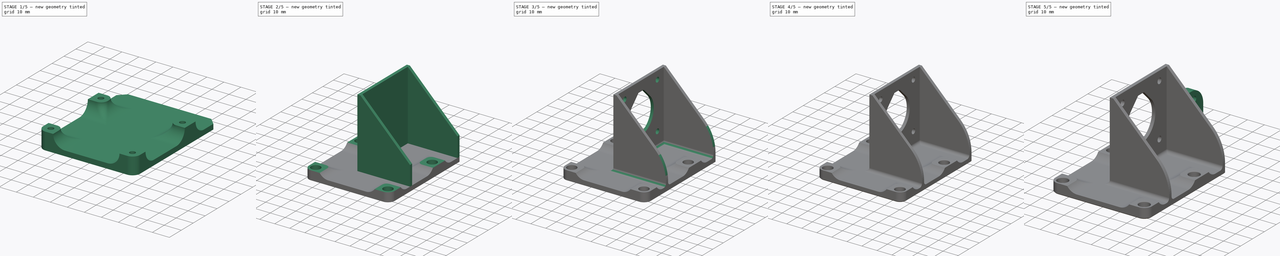
[diagram: build sequence overview — one tinted view per stage of 5, left to right]
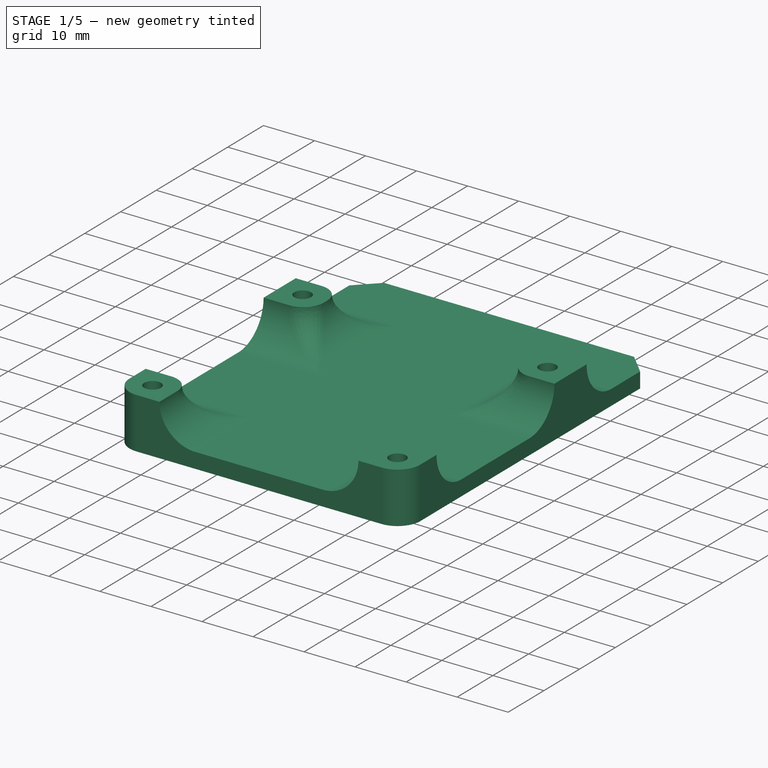
[diagram: stage 1 of 5 — iso view after this stage's code; geometry added in this stage tinted green]
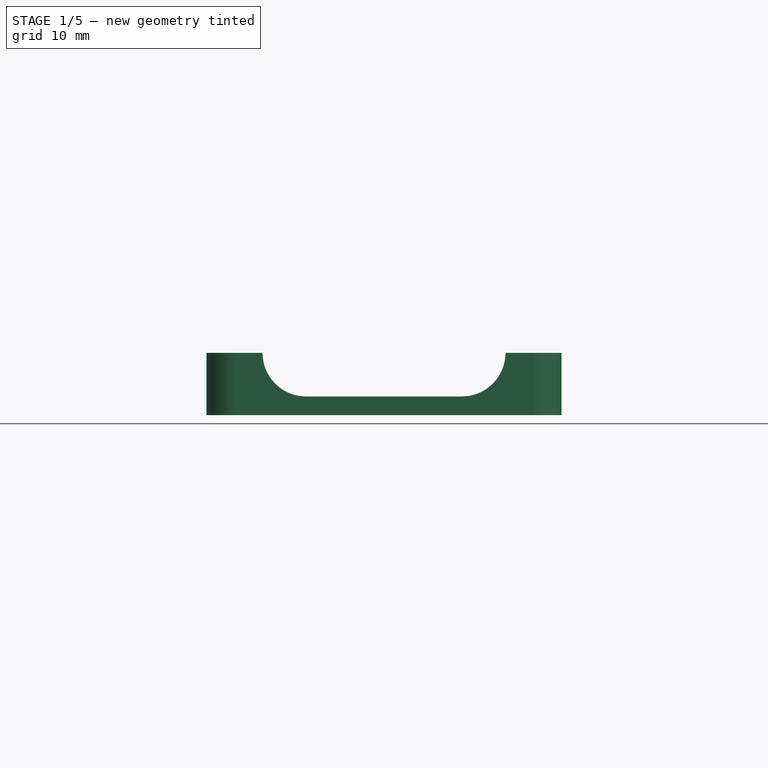
[diagram: stage 1 of 5 — front view after this stage's code; geometry added in this stage tinted green]
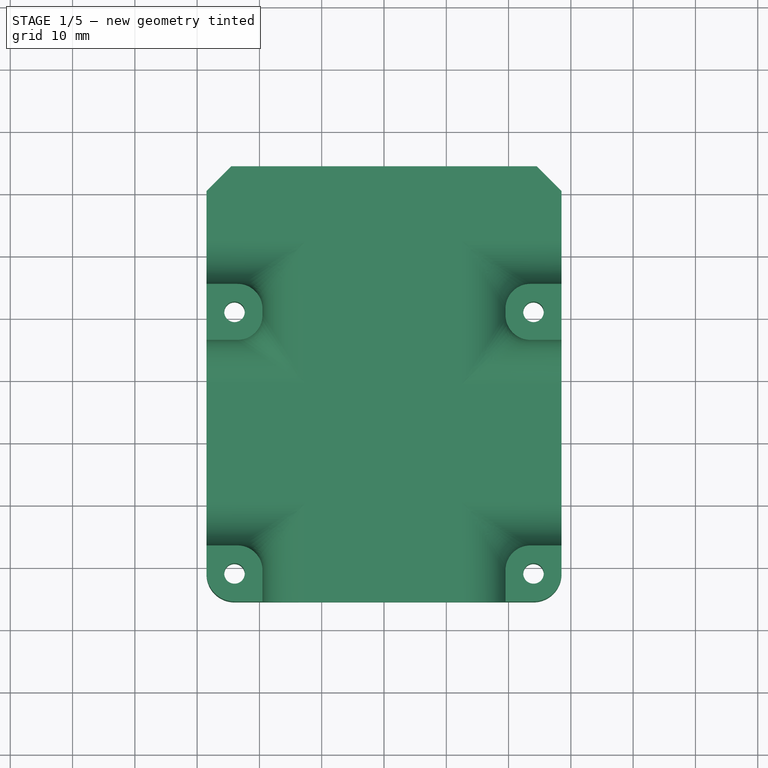
[diagram: stage 1 of 5 — top view after this stage's code; geometry added in this stage tinted green]
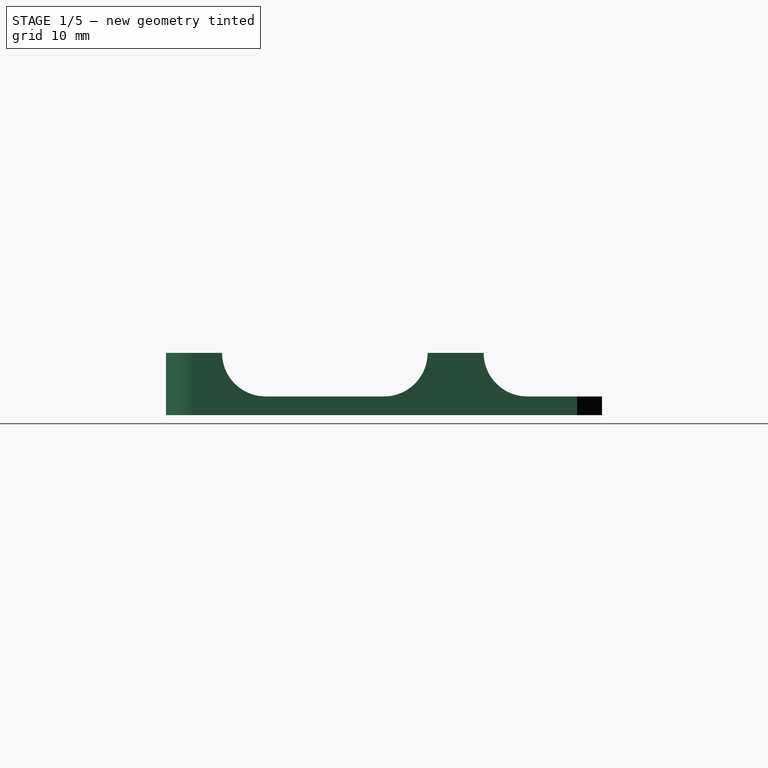
[diagram: stage 1 of 5 — right view after this stage's code; geometry added in this stage tinted green]
FCSTD DOCUMENT  (FreeCAD 0.16R6707 (Git))
Label: E3dSoporte
License: CreativeCommons Attribution-NonCommercial-ShareAlike
LicenseURL: http://creativecommons.org/licenses/by-nc-sa/4.0/
objects: Sketcher::SketchObject×9, PartDesign::Fillet×7, PartDesign::Pocket×6, PartDesign::Pad×3, PartDesign::Chamfer×3
note: 37 computed .brp shape members not serialized (recipe doc carries the construction recipe); baked Part::Feature solids carry a one-line shape summary decoded from their .brp

FEATURE [Sketcher::SketchObject] Sketch
  sketch-geometry (16):
    g0: LineSegment [constr] StartX=-24 StartY=21 StartZ=0 EndX=24 EndY=21 EndZ=0
    g1: LineSegment [constr] StartX=24 StartY=21 StartZ=0 EndX=24 EndY=-21 EndZ=0
    g2: LineSegment [constr] StartX=24 StartY=-21 StartZ=0 EndX=-24 EndY=-21 EndZ=0
    g3: LineSegment [constr] StartX=-24 StartY=-21 StartZ=0 EndX=-24 EndY=21 EndZ=0
    g4: Circle CenterX=-24 CenterY=21 CenterZ=0 NormalX=0 NormalY=0 NormalZ=1 Radius=1.65
    g5: Circle CenterX=24 CenterY=21 CenterZ=0 NormalX=0 NormalY=0 NormalZ=1 Radius=1.65
    g6: Circle CenterX=-24 CenterY=-21 CenterZ=0 NormalX=0 NormalY=0 NormalZ=1 Radius=1.65
    g7: Circle CenterX=24 CenterY=-21 CenterZ=0 NormalX=0 NormalY=0 NormalZ=1 Radius=1.65
    g8: ArcOfCircle CenterX=-24 CenterY=-21 CenterZ=0 NormalX=0 NormalY=0 NormalZ=1 Radius=4.5 StartAngle=3.14159 EndAngle=4.71239
    g9: ArcOfCircle CenterX=24 CenterY=-21 CenterZ=0 NormalX=0 NormalY=0 NormalZ=1 Radius=4.5 StartAngle=4.71239 EndAngle=6.28319
    g10: LineSegment StartX=-24 StartY=-25.5 StartZ=0 EndX=24 EndY=-25.5 EndZ=0
    g11: LineSegment StartX=-28.5 StartY=-21 StartZ=0 EndX=-28.5 EndY=40.5 EndZ=0
    g12: LineSegment StartX=28.5 StartY=-21 StartZ=0 EndX=28.5 EndY=40.5 EndZ=0
    g13: LineSegment StartX=-28.5 StartY=40.5 StartZ=0 EndX=-24.5 EndY=44.5 EndZ=0
    g14: LineSegment StartX=-24.5 StartY=44.5 StartZ=0 EndX=24.5 EndY=44.5 EndZ=0
    g15: LineSegment StartX=24.5 StartY=44.5 StartZ=0 EndX=28.5 EndY=40.5 EndZ=0
  constraints (43):
    c: Coincident(g0,g1)
    c: Coincident(g1,g2)
    c: Coincident(g2,g3)
    c: Coincident(g3,g0)
    c: Horizontal(g0)
    c: Horizontal(g2)
    c: Vertical(g1)
    c: Vertical(g3)
    c: Symmetric(g1,g0,g-1)
    c: Coincident(g4,g0)
    c: Coincident(g5,g0)
    c: Coincident(g6,g2)
    c: Coincident(g7,g1)
    c: Equal(g4,g5)
    c: Equal(g5,g7)
    c: Equal(g7,g6)
    c: Radius(g5) = 1.65
    c: DistanceX(g0,g0) = 48
    c: DistanceY(g3,g3) = 42
    c: Coincident(g8,g2)
    c: Coincident(g9,g1)
    c: Coincident(g10,g8)
    c: Coincident(g10,g9)
    c: Horizontal(g10)
    c: Tangent(g10,g9)
    c: Tangent(g10,g8)
    c: Coincident(g11,g8)
    c: Vertical(g11)
    c: Coincident(g12,g9)
    c: Vertical(g12)
    c: Tangent(g12,g9)
    c: Tangent(g8,g11)
    c: DistanceX(g8,g9) = 57
    c: Coincident(g11,g13)
    c: Coincident(g13,g14)
    c: Horizontal(g14)
    c: Coincident(g14,g15)
    c: Coincident(g15,g12)
    c: Symmetric(g13,g14,g-2)
    c: Symmetric(g11,g12,g-2)
    c: Perpendicular(g15,g13)
    c: DistanceY(g8,g13) = 70
    c: DistanceY(g11,g13) = 4
FEATURE [PartDesign::Pad] Pad
  Length = 10
  Length2 = 100
  Sketch = -> Sketch
  Type = 0
FEATURE [Sketcher::SketchObject] Sketch001
  ExternalGeometry = -> [Pad]
  Placement = pos=(0,-25.5,0) rot=(1,0,0;1.5708rad)
  Support = -> Pad [Face2]
  sketch-geometry (4):
    g0: ArcOfCircle CenterX=-12.5 CenterY=10 CenterZ=0 NormalX=0 NormalY=0 NormalZ=1 Radius=7 StartAngle=1.5708 EndAngle=4.71239
    g1: ArcOfCircle CenterX=12.5 CenterY=10 CenterZ=0 NormalX=0 NormalY=0 NormalZ=1 Radius=7 StartAngle=4.71239 EndAngle=7.85398
    g2: LineSegment StartX=-12.5 StartY=3 StartZ=0 EndX=12.5 EndY=3 EndZ=0
    g3: LineSegment StartX=-12.5 StartY=17 StartZ=0 EndX=12.5 EndY=17 EndZ=0
  constraints (10):
    c: Tangent(g0,g3) = 1.5708
    c: Tangent(g0,g2) = -1.5708
    c: Tangent(g2,g1) = -1.5708
    c: Tangent(g3,g1) = 1.5708
    c: Horizontal(g2)
    c: Equal(g0,g1)
    c: Symmetric(g0,g1,g-2)
    c: PointOnObject(g1,g-3)
    c: DistanceY(g-1,g1) = 3
    c: DistanceX(g3,g3) = 25
FEATURE [PartDesign::Pocket] Pocket
  Length = 5
  Sketch = -> Sketch001
  Type = 1
FEATURE [Sketcher::SketchObject] Sketch002
  ExternalGeometry = -> [Pocket]
  Placement = pos=(28.5,0,0) rot=(0.57735,0.57735,0.57735;2.0944rad)
  Support = -> Pocket [Face12]
  sketch-geometry (9):
    g0: ArcOfCircle CenterX=-9.5 CenterY=10 CenterZ=0 NormalX=0 NormalY=0 NormalZ=1 Radius=7 StartAngle=1.5708 EndAngle=4.71239
    g1: ArcOfCircle CenterX=9.5 CenterY=10 CenterZ=0 NormalX=0 NormalY=0 NormalZ=1 Radius=7 StartAngle=4.71239 EndAngle=7.85398
    g2: LineSegment StartX=-9.5 StartY=3 StartZ=0 EndX=9.5 EndY=3 EndZ=0
    g3: LineSegment StartX=-9.5 StartY=17 StartZ=0 EndX=9.5 EndY=17 EndZ=0
    g4: ArcOfCircle CenterX=32.5 CenterY=10 CenterZ=0 NormalX=0 NormalY=0 NormalZ=1 Radius=7 StartAngle=1.5708 EndAngle=4.71239
    g5: ArcOfCircle CenterX=51.5 CenterY=10 CenterZ=0 NormalX=0 NormalY=0 NormalZ=1 Radius=7 StartAngle=4.71239 EndAngle=7.85398
    g6: LineSegment StartX=32.5 StartY=3 StartZ=0 EndX=51.5 EndY=3 EndZ=0
    g7: LineSegment StartX=32.5 StartY=17 StartZ=0 EndX=51.5 EndY=17 EndZ=0
    g8: LineSegment [constr] StartX=21 StartY=10 StartZ=0 EndX=21 EndY=0 EndZ=0
  constraints (24):
    c: Tangent(g0,g3) = 1.5708
    c: Tangent(g0,g2) = -1.5708
    c: Tangent(g2,g1) = -1.5708
    c: Tangent(g3,g1) = 1.5708
    c: Horizontal(g2)
    c: Equal(g0,g1)
    c: PointOnObject(g0,g-3)
    c: Tangent(g4,g7) = 1.5708
    c: Tangent(g4,g6) = -1.5708
    c: Tangent(g6,g5) = -1.5708
    c: Tangent(g7,g5) = 1.5708
    c: Horizontal(g6)
    c: Equal(g4,g5)
    c: PointOnObject(g4,g-3)
    c: DistanceY(g-1,g1) = 3
    c: Equal(g1,g4)
    c: Symmetric(g0,g1,g-2)
    c: DistanceX(g3,g3) = 19
    c: Equal(g7,g3)
    c: PointOnObject(g8,g-3)
    c: PointOnObject(g8,g-1)
    c: Vertical(g8)
    c: DistanceX(g-1,g8) = 21
    c: Symmetric(g1,g4,g8)
FEATURE [PartDesign::Pocket] Pocket001
  Length = 5
  Sketch = -> Sketch002
  Type = 1
FEATURE [PartDesign::Fillet] Fillet
  Base = -> Pocket001 [Edge41,Edge36,Edge43,Edge51,Edge72,Edge76]
  Radius = 4
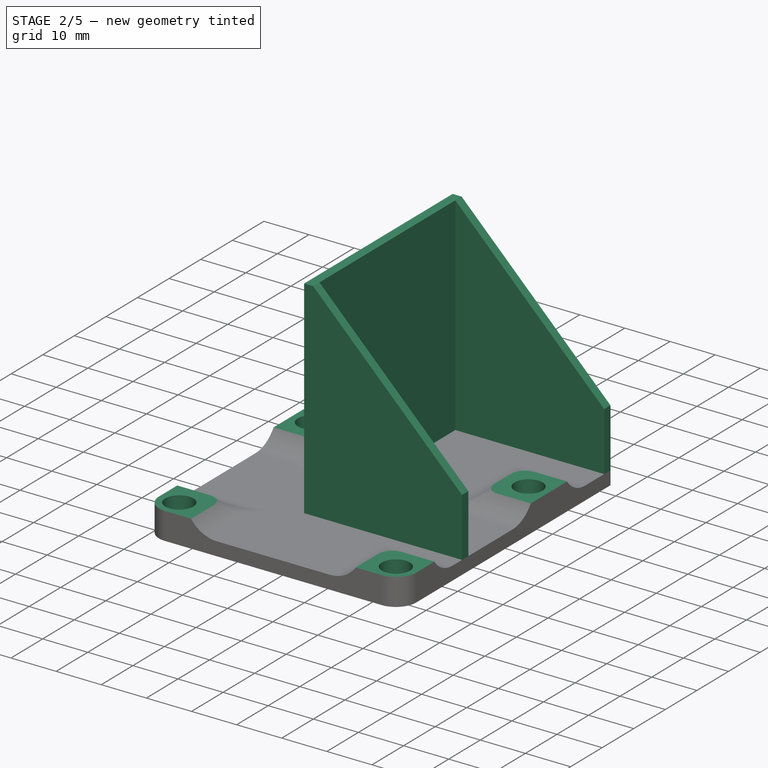
[diagram: stage 2 of 5 — iso view after this stage's code; geometry added in this stage tinted green]
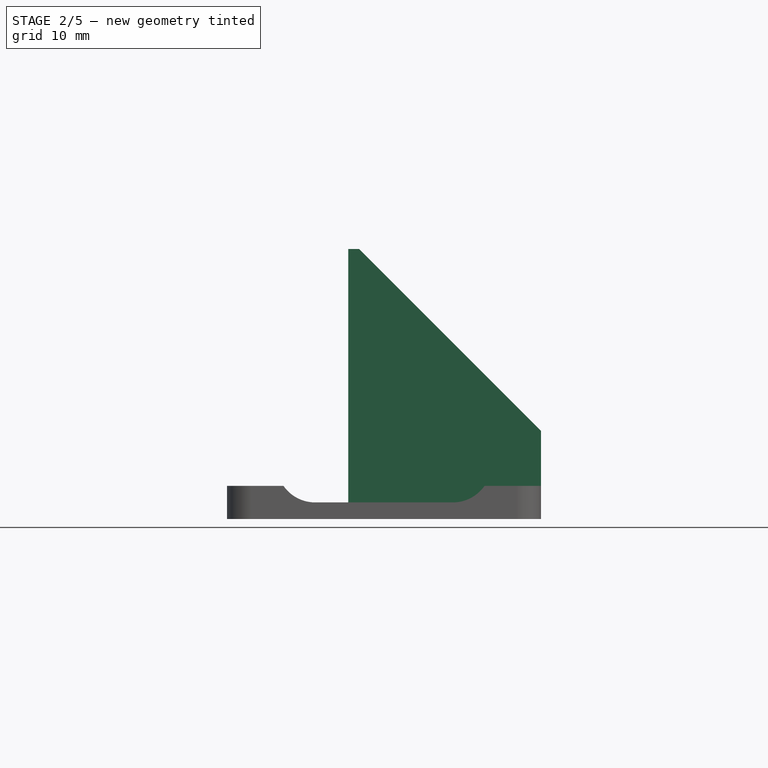
[diagram: stage 2 of 5 — front view after this stage's code; geometry added in this stage tinted green]
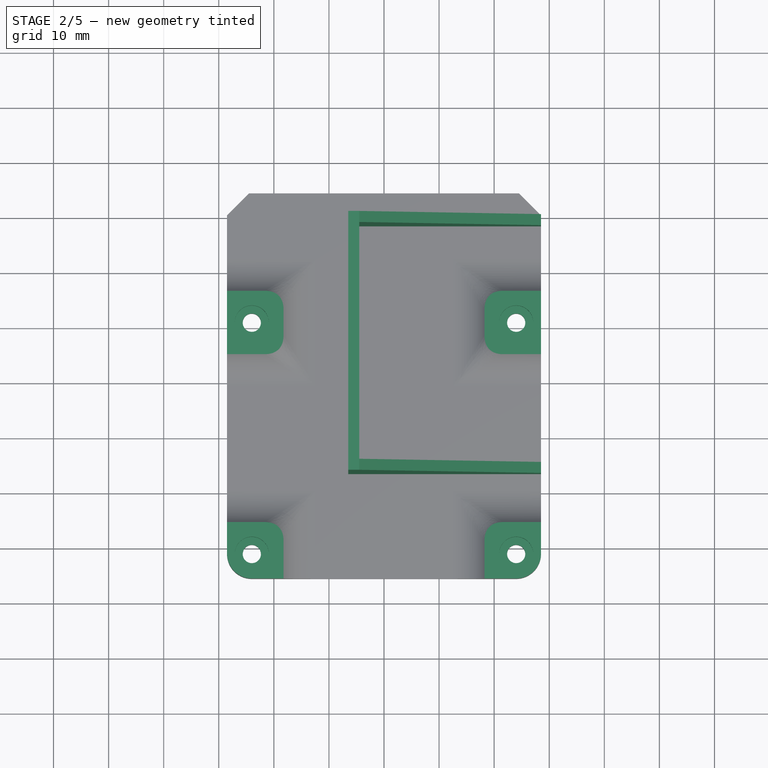
[diagram: stage 2 of 5 — top view after this stage's code; geometry added in this stage tinted green]
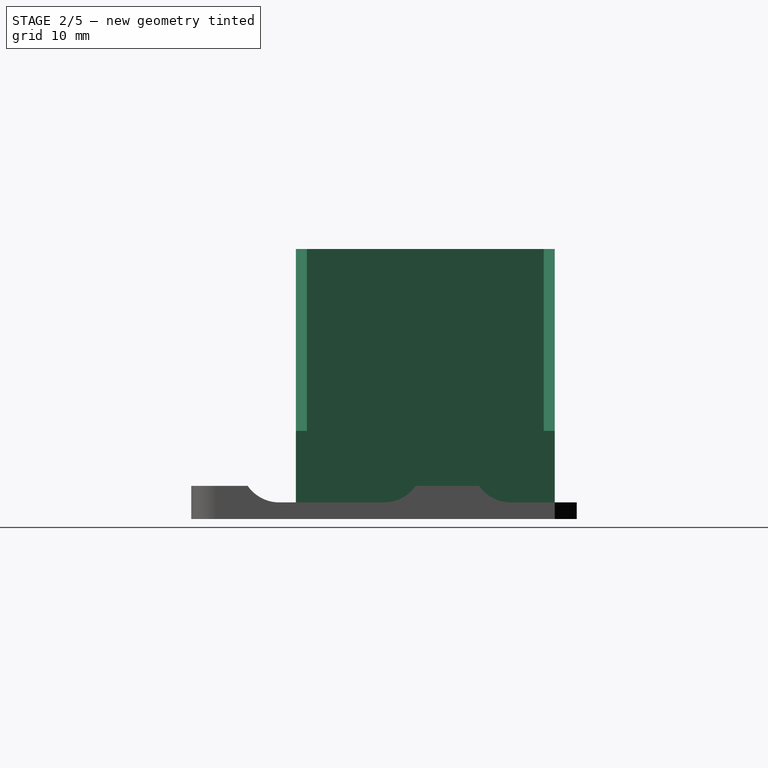
[diagram: stage 2 of 5 — right view after this stage's code; geometry added in this stage tinted green]
FEATURE [Sketcher::SketchObject] Sketch003
  ExternalGeometry = -> [Fillet]
  Placement = pos=(0,0,10) rot=(0,0,1;0rad)
  Support = -> Fillet [Face1]
  sketch-geometry (4):
    g0: Circle CenterX=-24 CenterY=21 CenterZ=0 NormalX=0 NormalY=0 NormalZ=1 Radius=3.1
    g1: Circle CenterX=24 CenterY=21 CenterZ=0 NormalX=0 NormalY=0 NormalZ=1 Radius=3.1
    g2: Circle CenterX=-24 CenterY=-21 CenterZ=0 NormalX=0 NormalY=0 NormalZ=1 Radius=3.1
    g3: Circle CenterX=24 CenterY=-21 CenterZ=0 NormalX=0 NormalY=0 NormalZ=1 Radius=3.1
  constraints (8):
    c: Coincident(g0,g-3)
    c: Coincident(g1,g-4)
    c: Coincident(g2,g-6)
    c: Coincident(g3,g-5)
    c: Equal(g3,g2)
    c: Equal(g2,g0)
    c: Equal(g0,g1)
    c: Radius(g0) = 3.1
FEATURE [PartDesign::Pocket] Pocket002
  Length = 7
  Sketch = -> Sketch003
  Type = 0
FEATURE [Sketcher::SketchObject] Sketch004
  Placement = pos=(28.5,0,0) rot=(0.57735,0.57735,0.57735;2.0944rad)
  Support = -> Pocket002 [Face22]
  sketch-geometry (4):
    g0: LineSegment StartX=-30 StartY=16 StartZ=0 EndX=30 EndY=16 EndZ=0
    g1: LineSegment StartX=30 StartY=16 StartZ=0 EndX=30 EndY=6 EndZ=0
    g2: LineSegment StartX=30 StartY=6 StartZ=0 EndX=-30 EndY=6 EndZ=0
    g3: LineSegment StartX=-30 StartY=6 StartZ=0 EndX=-30 EndY=16 EndZ=0
  constraints (12):
    c: Coincident(g0,g1)
    c: Coincident(g1,g2)
    c: Coincident(g2,g3)
    c: Coincident(g3,g0)
    c: Horizontal(g0)
    c: Horizontal(g2)
    c: Vertical(g1)
    c: Vertical(g3)
    c: Symmetric(g2,g1,g-2)
    c: DistanceX(g0,g0) = 60
    c: DistanceY(g3,g3) = 10
    c: DistanceY(g-1,g2) = 6
FEATURE [PartDesign::Pocket] Pocket003
  Length = 5
  Sketch = -> Sketch004
  Type = 1
FEATURE [Sketcher::SketchObject] Sketch005
  ExternalGeometry = -> [Pocket003]
  Placement = pos=(0,0,3) rot=(0,0,1;0rad)
  Support = -> Pocket003 [Face4]
  sketch-geometry (9):
    g0: LineSegment StartX=28.5 StartY=-6.5 StartZ=0 EndX=-6.5 EndY=-6.5 EndZ=0
    g1: LineSegment StartX=-6.5 StartY=-6.5 StartZ=0 EndX=-6.5 EndY=40.5 EndZ=0
    g2: LineSegment StartX=-6.5 StartY=40.5 StartZ=0 EndX=28.5 EndY=40.5 EndZ=0
    g3: LineSegment StartX=28.5 StartY=40.5 StartZ=0 EndX=28.5 EndY=38.5 EndZ=0
    g4: LineSegment StartX=28.5 StartY=38.5 StartZ=0 EndX=-4.5 EndY=38.5 EndZ=0
    g5: LineSegment StartX=-4.5 StartY=38.5 StartZ=0 EndX=-4.5 EndY=-4.5 EndZ=0
    g6: LineSegment StartX=-4.5 StartY=-4.5 StartZ=0 EndX=28.5 EndY=-4.5 EndZ=0
    g7: LineSegment StartX=28.5 StartY=-4.5 StartZ=0 EndX=28.5 EndY=-6.5 EndZ=0
    g8: LineSegment [constr] StartX=-4.5 StartY=-4.5 StartZ=0 EndX=-6.5 EndY=-4.5 EndZ=0
  constraints (27):
    c: Horizontal(g0)
    c: Coincident(g0,g1)
    c: Vertical(g1)
    c: Coincident(g1,g2)
    c: Horizontal(g2)
    c: Coincident(g2,g3)
    c: Vertical(g3)
    c: Coincident(g3,g4)
    c: Horizontal(g4)
    c: Coincident(g4,g5)
    c: Vertical(g5)
    c: Coincident(g5,g6)
    c: Horizontal(g6)
    c: Coincident(g6,g7)
    c: Coincident(g7,g0)
    c: Vertical(g7)
    c: Coincident(g8,g5)
    c: PointOnObject(g8,g1)
    c: Horizontal(g8)
    c: Equal(g8,g7)
    c: Equal(g7,g3)
    c: DistanceY(g3,g3) = 2
    c: DistanceY(g5,g5) = 43
    c: PointOnObject(g6,g-4)
    c: PointOnObject(g3,g-4)
    c: DistanceX(g-3,g0) = 22
    c: Coincident(g2,g-5)
FEATURE [PartDesign::Pad] Pad001
  Length = 46
  Length2 = 100
  Sketch = -> Sketch005
  Type = 0
FEATURE [PartDesign::Chamfer] Chamfer
  Base = -> Pad001 [Edge121,Edge118]
  Size = 33
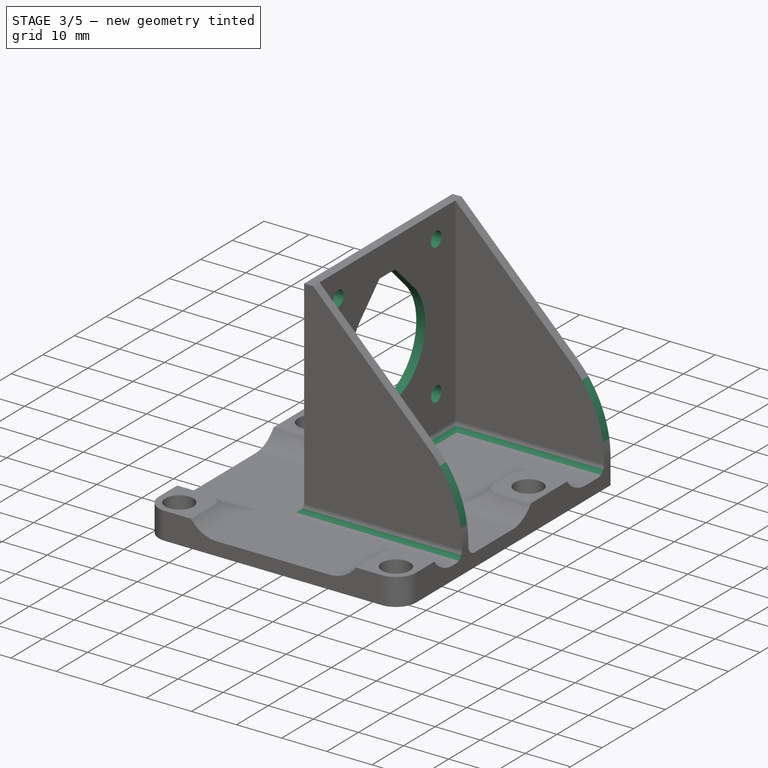
[diagram: stage 3 of 5 — iso view after this stage's code; geometry added in this stage tinted green]
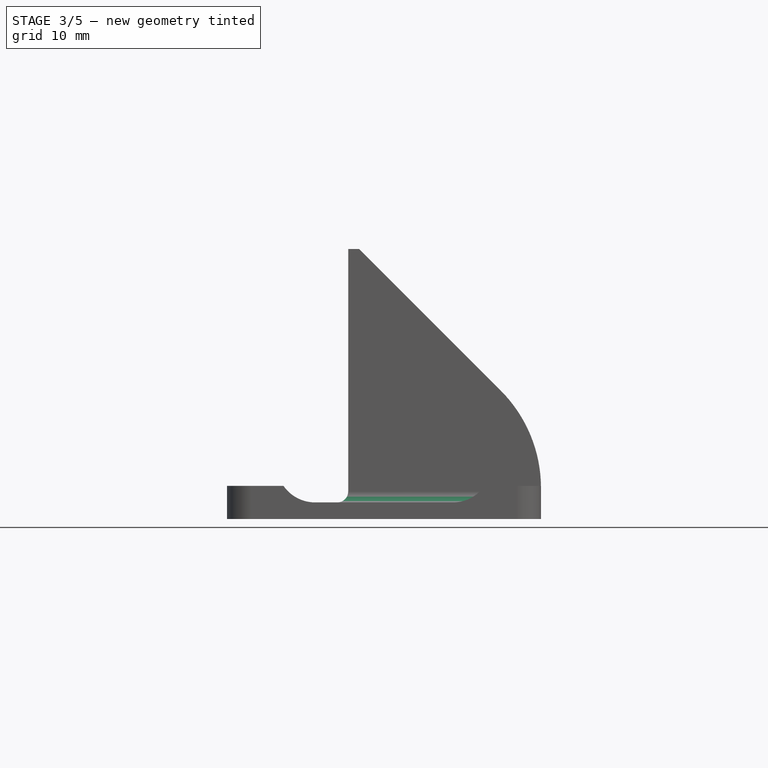
[diagram: stage 3 of 5 — front view after this stage's code; geometry added in this stage tinted green]
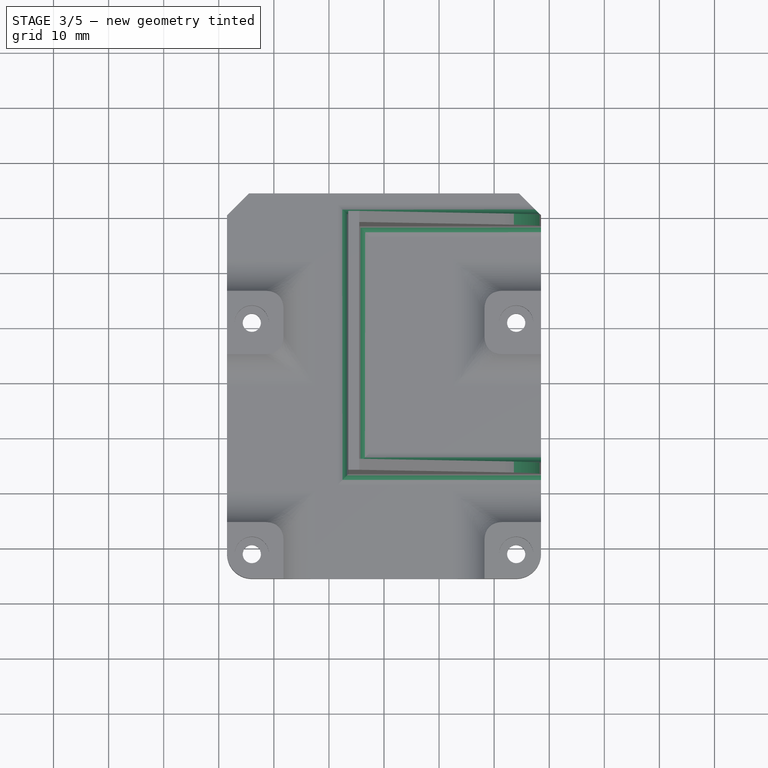
[diagram: stage 3 of 5 — top view after this stage's code; geometry added in this stage tinted green]
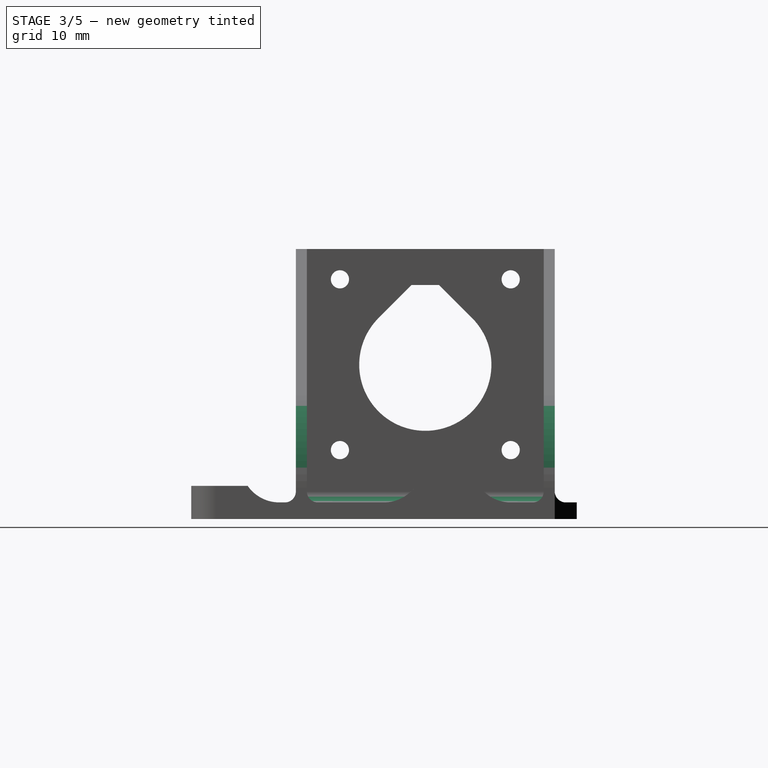
[diagram: stage 3 of 5 — right view after this stage's code; geometry added in this stage tinted green]
FEATURE [PartDesign::Fillet] Fillet001
  Base = -> Chamfer [Edge74,Edge3,Edge32,Edge23,Edge24,Edge75]
  Radius = 2
FEATURE [Sketcher::SketchObject] Sketch006
  ExternalGeometry = -> [Fillet001]
  Placement = pos=(-6.5,0,0) rot=(0.57735,-0.57735,-0.57735;2.0944rad)
  Support = -> Fillet001 [Face24]
  sketch-geometry (15):
    g0: LineSegment [constr] StartX=-40.5 StartY=49 StartZ=0 EndX=-17 EndY=28 EndZ=0
    g1: LineSegment [constr] StartX=-17 StartY=28 StartZ=0 EndX=6.5 EndY=49 EndZ=0
    g2: ArcOfCircle CenterX=-17 CenterY=28 CenterZ=0 NormalX=0 NormalY=0 NormalZ=1 Radius=12 StartAngle=2.35619 EndAngle=7.06858
    g3: LineSegment StartX=-25.4853 StartY=36.4853 StartZ=0 EndX=-19.5 EndY=42.4706 EndZ=0
    g4: LineSegment StartX=-19.5 StartY=42.4706 StartZ=0 EndX=-14.5 EndY=42.4706 EndZ=0
    g5: LineSegment StartX=-14.5 StartY=42.4706 StartZ=0 EndX=-8.51472 EndY=36.4853 EndZ=0
    g6: LineSegment [constr] StartX=-17 StartY=28 StartZ=0 EndX=-17 EndY=42.4706 EndZ=0
    g7: LineSegment [constr] StartX=-32.5 StartY=43.5 StartZ=0 EndX=-1.5 EndY=43.5 EndZ=0
    g8: LineSegment [constr] StartX=-1.5 StartY=43.5 StartZ=0 EndX=-1.5 EndY=12.5 EndZ=0
    g9: LineSegment [constr] StartX=-1.5 StartY=12.5 StartZ=0 EndX=-32.5 EndY=12.5 EndZ=0
    g10: LineSegment [constr] StartX=-32.5 StartY=12.5 StartZ=0 EndX=-32.5 EndY=43.5 EndZ=0
    g11: Circle CenterX=-32.5 CenterY=43.5 CenterZ=0 NormalX=0 NormalY=0 NormalZ=1 Radius=1.65
    g12: Circle CenterX=-1.5 CenterY=43.5 CenterZ=0 NormalX=0 NormalY=0 NormalZ=1 Radius=1.65
    g13: Circle CenterX=-32.5 CenterY=12.5 CenterZ=0 NormalX=0 NormalY=0 NormalZ=1 Radius=1.65
    g14: Circle CenterX=-1.5 CenterY=12.5 CenterZ=0 NormalX=0 NormalY=0 NormalZ=1 Radius=1.65
  constraints (38):
    c: Coincident(g0,g-3)
    c: Coincident(g1,g0)
    c: Coincident(g1,g-3)
    c: Equal(g0,g1)
    c: DistanceY(g0,g0) = 21
    c: Coincident(g2,g0)
    c: Tangent(g2,g3) = 1.5708
    c: Coincident(g3,g4)
    c: Horizontal(g4)
    c: Coincident(g4,g5)
    c: Coincident(g5,g2)
    c: Tangent(g2,g5)
    c: Coincident(g6,g0)
    c: PointOnObject(g6,g4)
    c: Vertical(g6)
    c: Symmetric(g2,g2,g6)
    c: Perpendicular(g5,g3)
    c: Radius(g2) = 12
    c: DistanceX(g4,g4) = 5
    c: Coincident(g7,g8)
    c: Coincident(g8,g9)
    c: Coincident(g9,g10)
    c: Coincident(g10,g7)
    c: Horizontal(g7)
    c: Horizontal(g9)
    c: Vertical(g8)
    c: Vertical(g10)
    c: Equal(g10,g7)
    c: Symmetric(g7,g8,g0)
    c: DistanceY(g10,g10) = 31
    c: Coincident(g11,g7)
    c: Coincident(g12,g7)
    c: Coincident(g13,g9)
    c: Coincident(g14,g8)
    c: Equal(g14,g13)
    c: Equal(g13,g11)
    c: Equal(g11,g12)
    c: Radius(g14) = 1.65
FEATURE [PartDesign::Pocket] Pocket004
  Length = 5
  Sketch = -> Sketch006
  Type = 0
FEATURE [PartDesign::Fillet] Fillet002
  Base = -> Pocket004 [Edge23,Edge7]
  Radius = 25
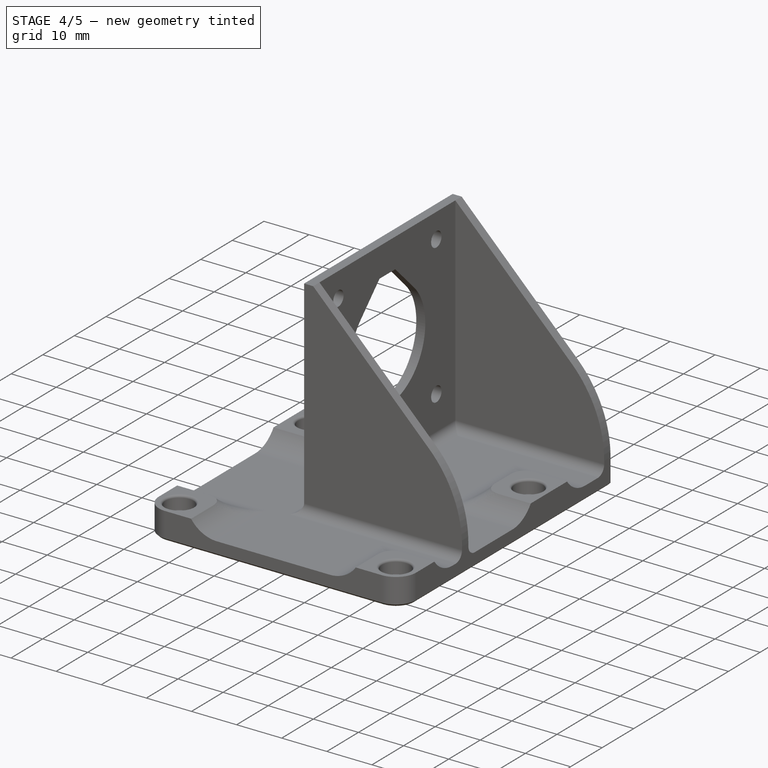
[diagram: stage 4 of 5 — iso view after this stage's code; geometry added in this stage tinted green]
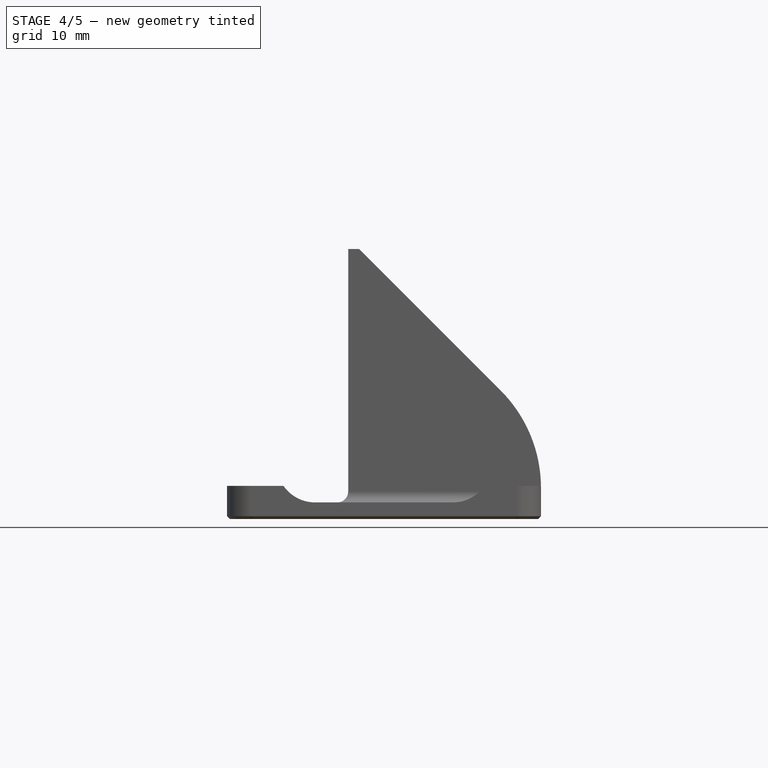
[diagram: stage 4 of 5 — front view after this stage's code; geometry added in this stage tinted green]
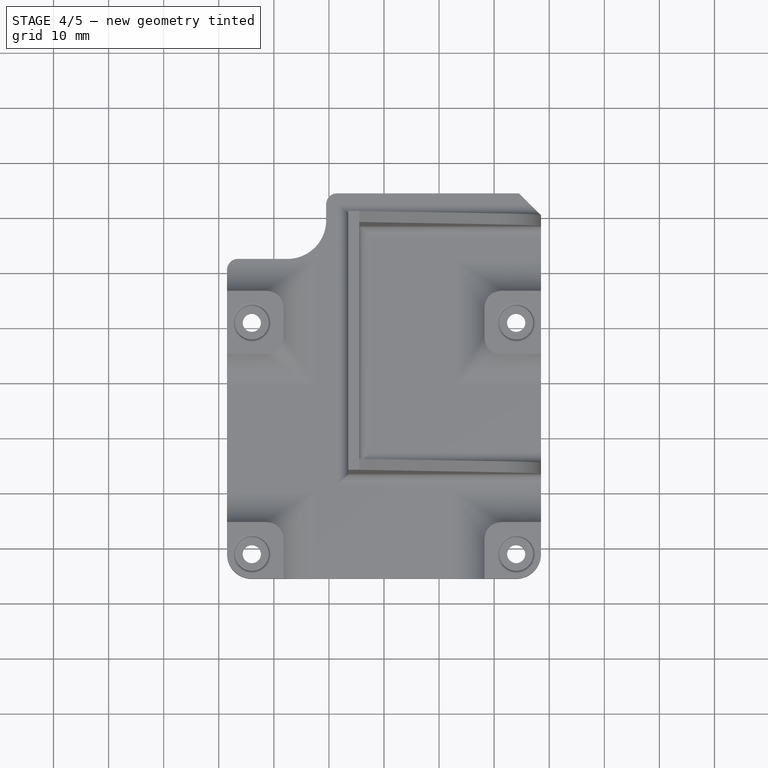
[diagram: stage 4 of 5 — top view after this stage's code; geometry added in this stage tinted green]
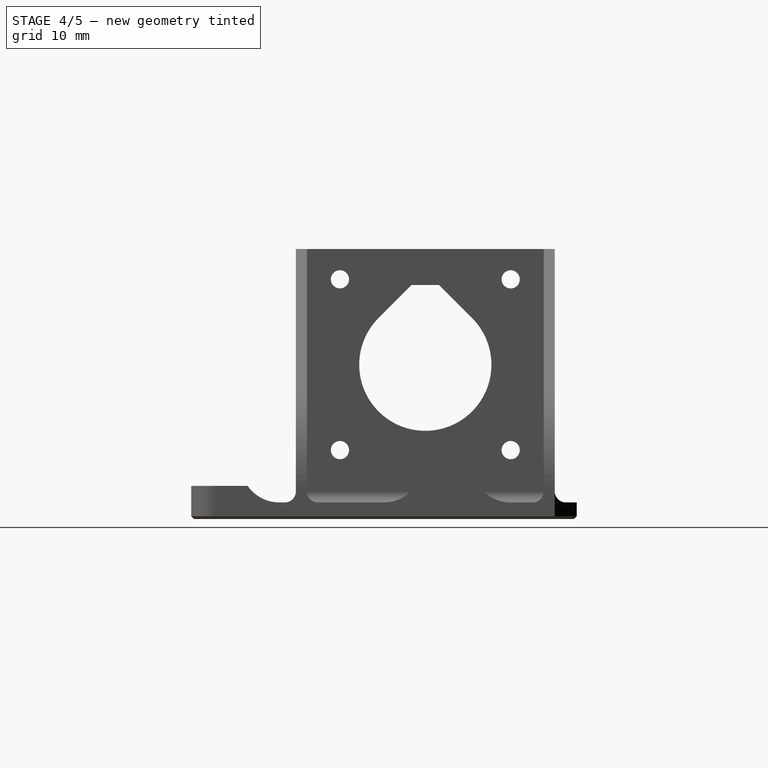
[diagram: stage 4 of 5 — right view after this stage's code; geometry added in this stage tinted green]
FEATURE [PartDesign::Fillet] Fillet003
  Base = -> Fillet002 [Edge173,Edge78,Edge73,Edge170]
  Radius = 0.5
FEATURE [PartDesign::Chamfer] Chamfer001
  Base = -> Fillet003 [Edge61,Edge32,Edge30,Edge16,Edge55,Edge62,Edge63,Edge64,Edge65,Edge66,Edge67,Edge68]
  Size = 0.5
FEATURE [Sketcher::SketchObject] Sketch007
  ExternalGeometry = -> [Chamfer001]
  Placement = pos=(0,0,3) rot=(0,0,1;0rad)
  Support = -> Chamfer001 [Face10]
  sketch-geometry (5):
    g0: ArcOfCircle CenterX=-17.5 CenterY=39.6 CenterZ=0 NormalX=0 NormalY=0 NormalZ=1 Radius=7 StartAngle=4.71239 EndAngle=6.28319
    g1: LineSegment StartX=-17.5 StartY=32.6 StartZ=0 EndX=-29.5 EndY=32.6 EndZ=0
    g2: LineSegment StartX=-29.5 StartY=32.6 StartZ=0 EndX=-29.5 EndY=45.5 EndZ=0
    g3: LineSegment StartX=-29.5 StartY=45.5 StartZ=0 EndX=-10.5 EndY=45.5 EndZ=0
    g4: LineSegment StartX=-10.5 StartY=45.5 StartZ=0 EndX=-10.5 EndY=39.6 EndZ=0
  constraints (15):
    c: Tangent(g0,g1) = 1.5708
    c: Coincident(g1,g2)
    c: Vertical(g2)
    c: Coincident(g2,g3)
    c: Horizontal(g3)
    c: Coincident(g3,g4)
    c: Coincident(g4,g0)
    c: Vertical(g4)
    c: Tangent(g0,g4)
    c: Horizontal(g1)
    c: DistanceY(g-3,g2) = 5
    c: DistanceX(g2,g-3) = 5
    c: Radius(g0) = 7
    c: DistanceX(g0,g-4) = 2
    c: DistanceY(g-5,g0) = 0.1
FEATURE [PartDesign::Pocket] Pocket005
  Length = 5
  Sketch = -> Sketch007
  Type = 0
FEATURE [PartDesign::Fillet] Fillet004
  Base = -> Pocket005 [Edge92,Edge144]
  Radius = 2
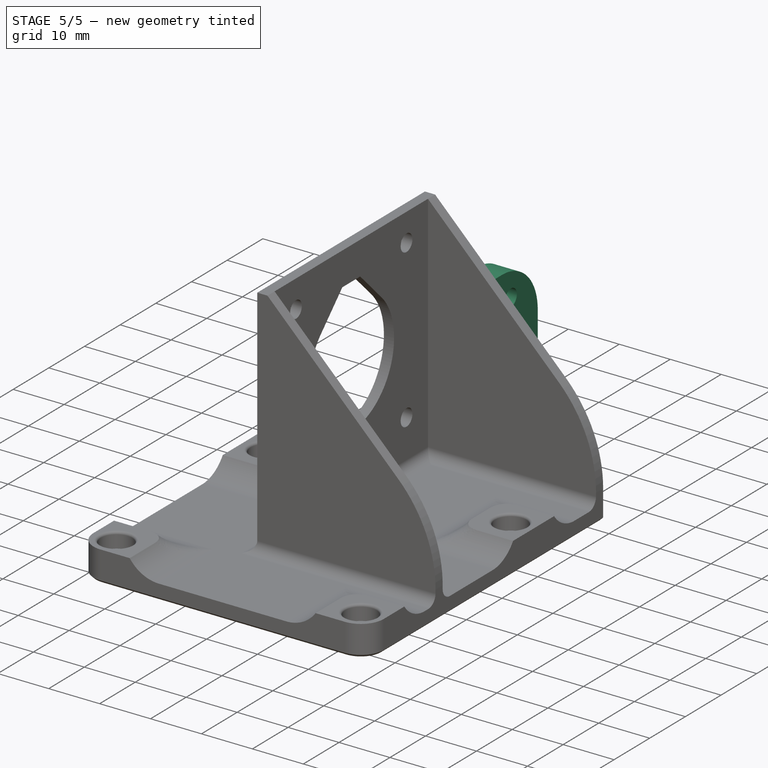
[diagram: stage 5 of 5 — iso view after this stage's code; geometry added in this stage tinted green]
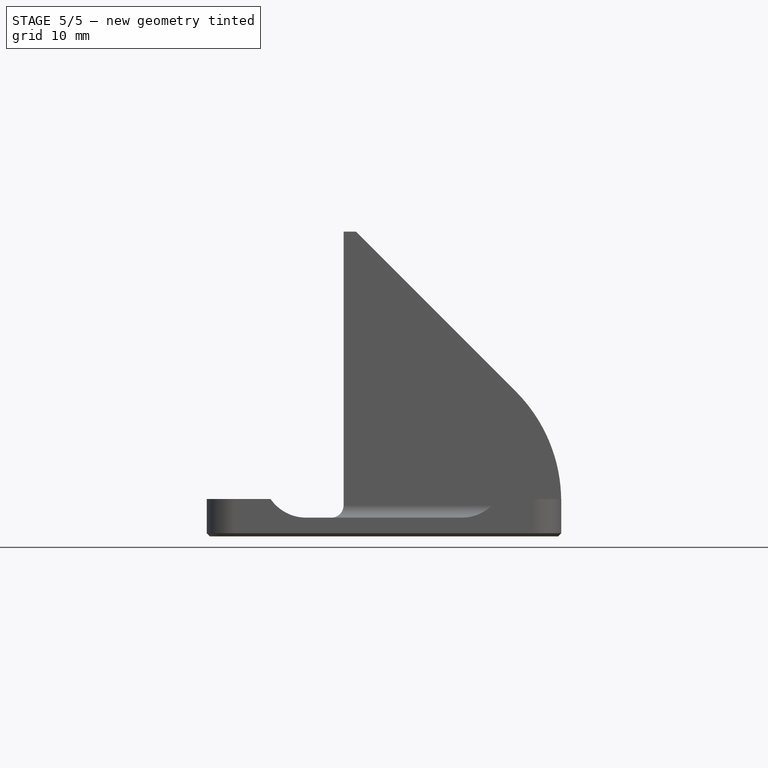
[diagram: stage 5 of 5 — front view after this stage's code; geometry added in this stage tinted green]
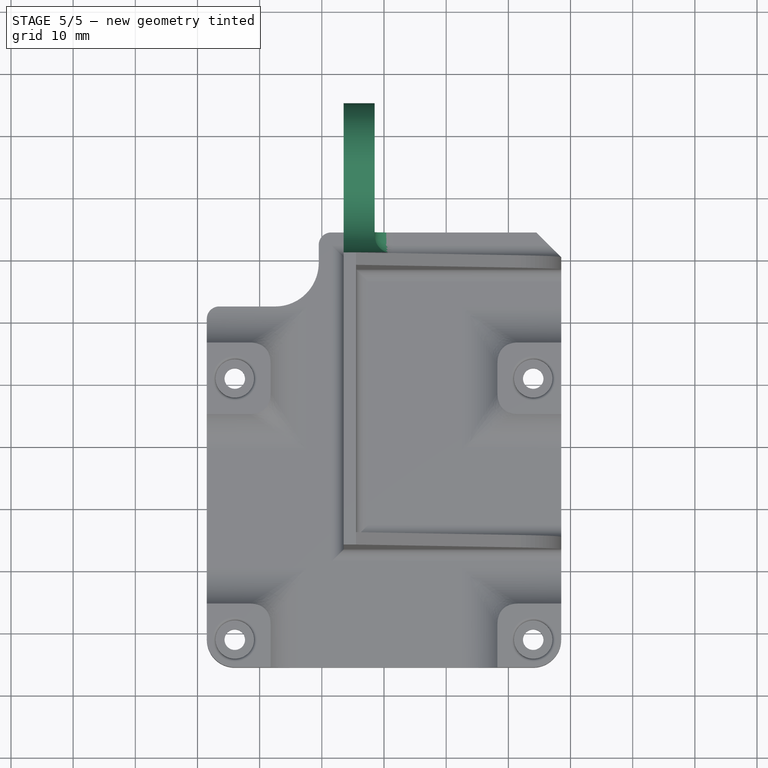
[diagram: stage 5 of 5 — top view after this stage's code; geometry added in this stage tinted green]
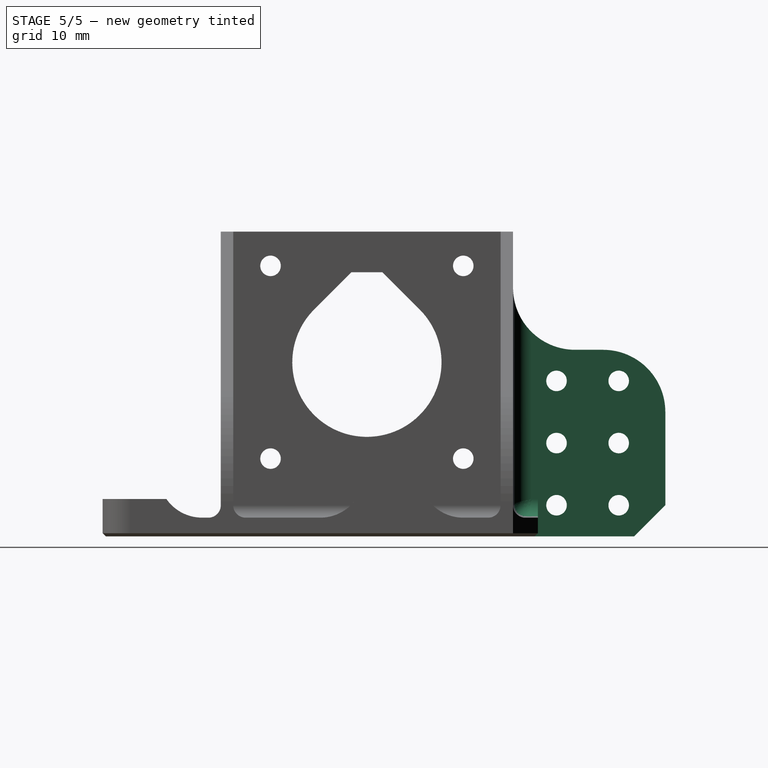
[diagram: stage 5 of 5 — right view after this stage's code; geometry added in this stage tinted green]
FEATURE [Sketcher::SketchObject] Sketch009
  Placement = pos=(-6.5,0,0) rot=(0.57735,-0.57735,-0.57735;2.0944rad)
  Support = -> Fillet004 [Face26]
  sketch-geometry (18):
    g0: LineSegment StartX=-65 StartY=30 StartZ=0 EndX=-40 EndY=30 EndZ=0
    g1: LineSegment StartX=-40 StartY=30 StartZ=0 EndX=-40 EndY=0 EndZ=0
    g2: LineSegment StartX=-40 StartY=0 StartZ=0 EndX=-65 EndY=0 EndZ=0
    g3: LineSegment StartX=-65 StartY=0 StartZ=0 EndX=-65 EndY=30 EndZ=0
    g4: Circle CenterX=-57.5 CenterY=25 CenterZ=0 NormalX=0 NormalY=0 NormalZ=1 Radius=1.65
    g5: Circle CenterX=-47.5 CenterY=25 CenterZ=0 NormalX=0 NormalY=0 NormalZ=1 Radius=1.65
    g6: LineSegment [constr] StartX=-57.5 StartY=25 StartZ=0 EndX=-47.5 EndY=25 EndZ=0
    g7: LineSegment [constr] StartX=-47.5 StartY=25 StartZ=0 EndX=-47.5 EndY=5 EndZ=0
    g8: LineSegment [constr] StartX=-47.5 StartY=5 StartZ=0 EndX=-57.5 EndY=5 EndZ=0
    g9: LineSegment [constr] StartX=-57.5 StartY=5 StartZ=0 EndX=-57.5 EndY=25 EndZ=0
    g10: Circle CenterX=-57.5 CenterY=5 CenterZ=0 NormalX=0 NormalY=0 NormalZ=1 Radius=1.65
    g11: Circle CenterX=-47.5 CenterY=5 CenterZ=0 NormalX=0 NormalY=0 NormalZ=1 Radius=1.65
    g12: Circle CenterX=-57.5 CenterY=15 CenterZ=0 NormalX=0 NormalY=0 NormalZ=1 Radius=1.65
    g13: Circle CenterX=-47.5 CenterY=15 CenterZ=0 NormalX=0 NormalY=0 NormalZ=1 Radius=1.65
    g14: LineSegment [constr] StartX=-65 StartY=30 StartZ=0 EndX=-57.5 EndY=25 EndZ=0
    g15: LineSegment [constr] StartX=-47.5 StartY=25 StartZ=0 EndX=-40 EndY=30 EndZ=0
    g16: LineSegment [constr] StartX=-65 StartY=0 StartZ=0 EndX=-57.5 EndY=5 EndZ=0
    g17: LineSegment [constr] StartX=-47.5 StartY=5 StartZ=0 EndX=-40 EndY=0 EndZ=0
  constraints (47):
    c: Coincident(g0,g1)
    c: Coincident(g1,g2)
    c: Coincident(g2,g3)
    c: Coincident(g3,g0)
    c: Horizontal(g0)
    c: Horizontal(g2)
    c: Vertical(g1)
    c: Vertical(g3)
    c: PointOnObject(g1,g-1)
    c: DistanceY(g3,g3) = 30
    c: DistanceX(g0,g0) = 25
    c: DistanceX(g1,g-1) = 40
    c: Coincident(g6,g7)
    c: Coincident(g7,g8)
    c: Coincident(g8,g9)
    c: Coincident(g9,g6)
    c: Horizontal(g6)
    c: Horizontal(g8)
    c: Vertical(g7)
    c: Vertical(g9)
    c: Coincident(g6,g4)
    c: Coincident(g5,g6)
    c: Coincident(g10,g8)
    c: Coincident(g11,g7)
    c: PointOnObject(g12,g9)
    c: PointOnObject(g13,g7)
    c: Radius(g10) = 1.65
    c: Equal(g10,g12)
    c: Equal(g10,g4)
    c: Equal(g10,g5)
    c: Equal(g10,g13)
    c: Equal(g10,g11)
    c: Coincident(g14,g0)
    c: Coincident(g14,g4)
    c: Coincident(g15,g5)
    c: Coincident(g15,g0)
    c: Coincident(g16,g2)
    c: Coincident(g16,g8)
    c: Coincident(g17,g7)
    c: Coincident(g17,g1)
    c: Equal(g14,g16)
    c: Equal(g16,g17)
    c: Equal(g17,g15)
    c: DistanceX(g6,g6) = 10
    c: DistanceY(g9,g9) = 20
    c: Symmetric(g8,g4,g12)
    c: Symmetric(g7,g5,g13)
FEATURE [PartDesign::Pad] Pad002
  Length = 5
  Length2 = 100
  Reversed = true
  Sketch = -> Sketch009
  Type = 0
FEATURE [PartDesign::Fillet] Fillet005
  Base = -> Pad002 [Edge2,Edge6]
  Radius = 10
FEATURE [PartDesign::Chamfer] Chamfer002
  Base = -> Fillet005 [Edge3]
  Size = 5
FEATURE [PartDesign::Fillet] Fillet006
  Base = -> Chamfer002 [Edge43]
  Radius = 3
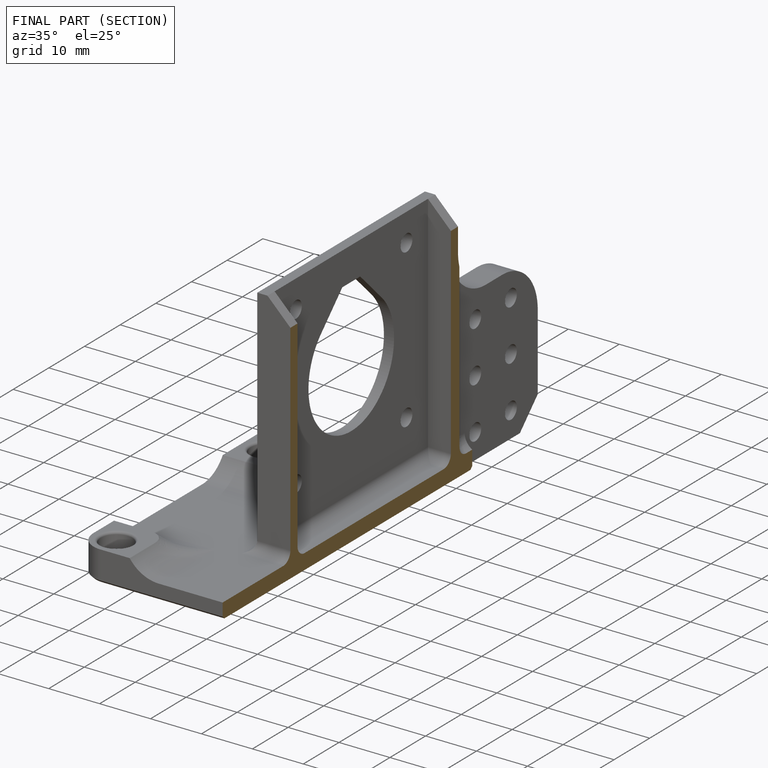
[diagram: finished part — half-section view (interior)]
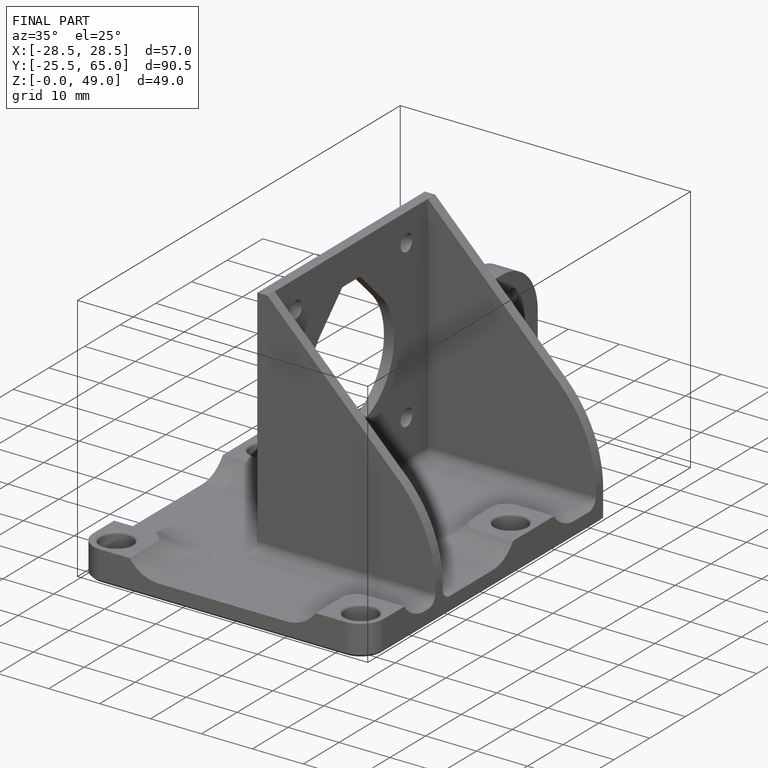
[diagram: finished part — iso view with bounding-box wireframe]
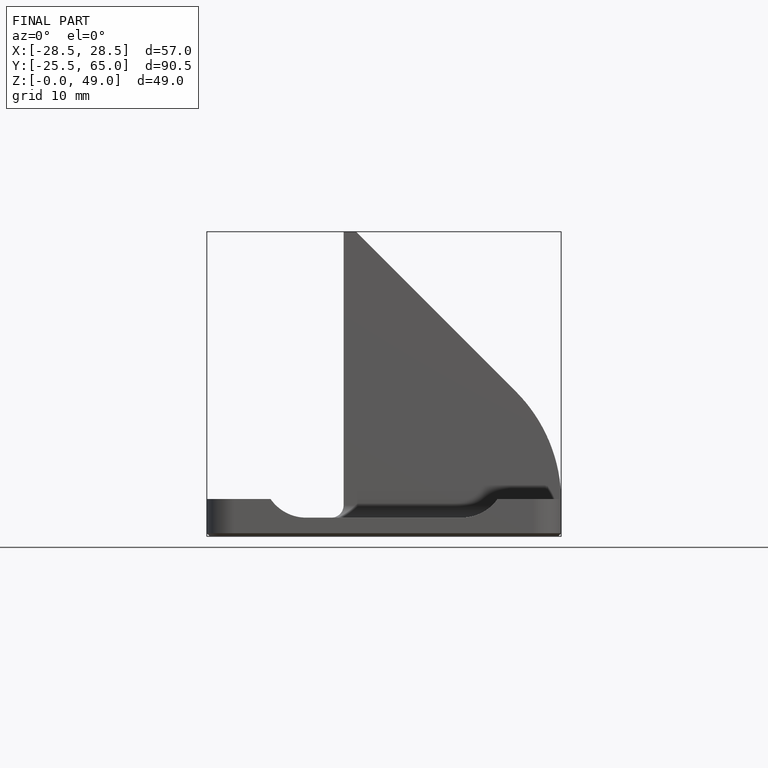
[diagram: finished part — front view with bounding-box wireframe]
